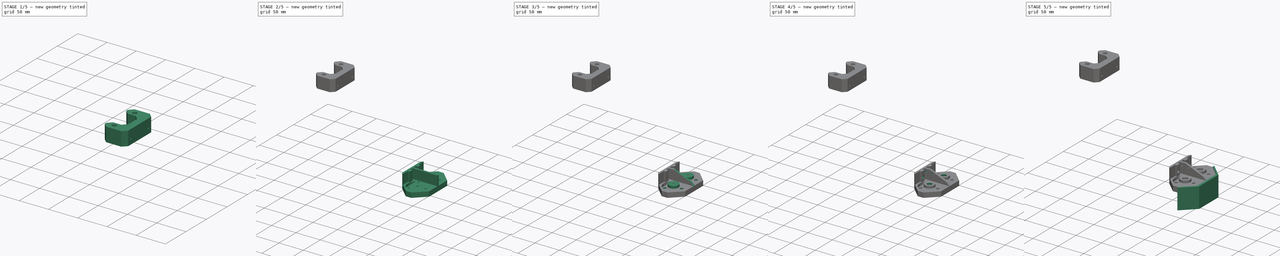
[diagram: build sequence overview — one tinted view per stage of 5, left to right]
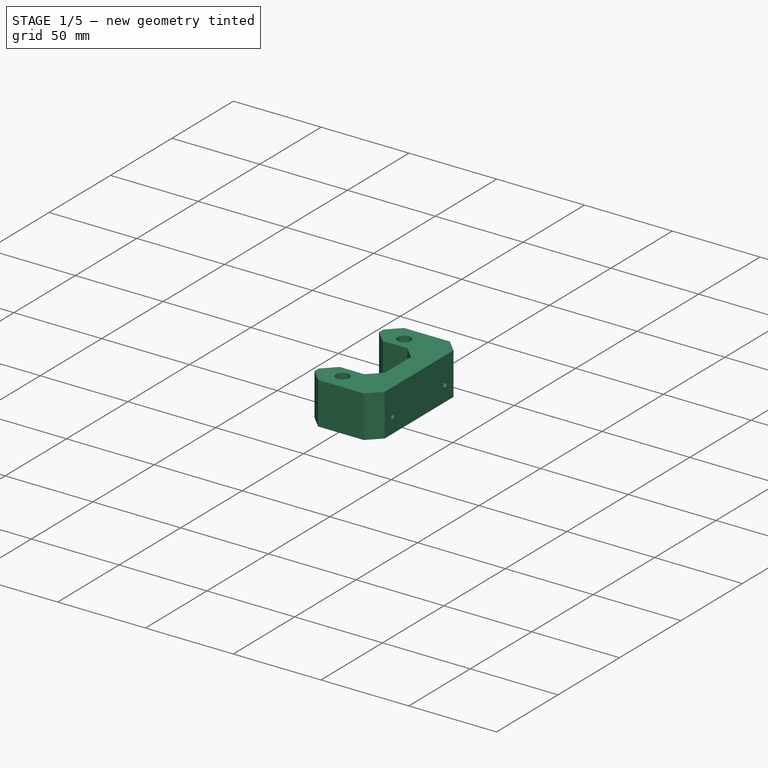
[diagram: stage 1 of 5 — iso view after this stage's code; geometry added in this stage tinted green]
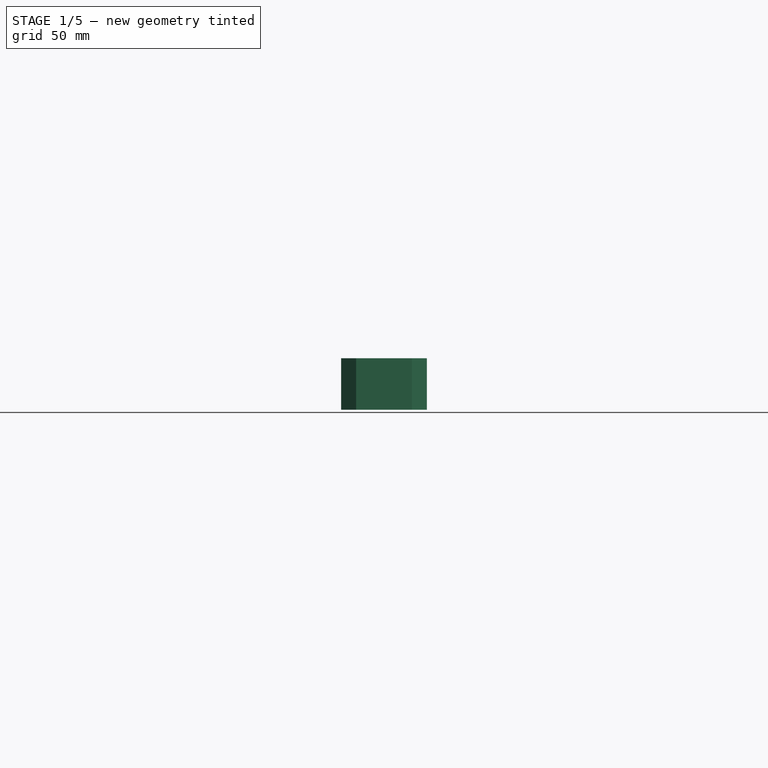
[diagram: stage 1 of 5 — front view after this stage's code; geometry added in this stage tinted green]
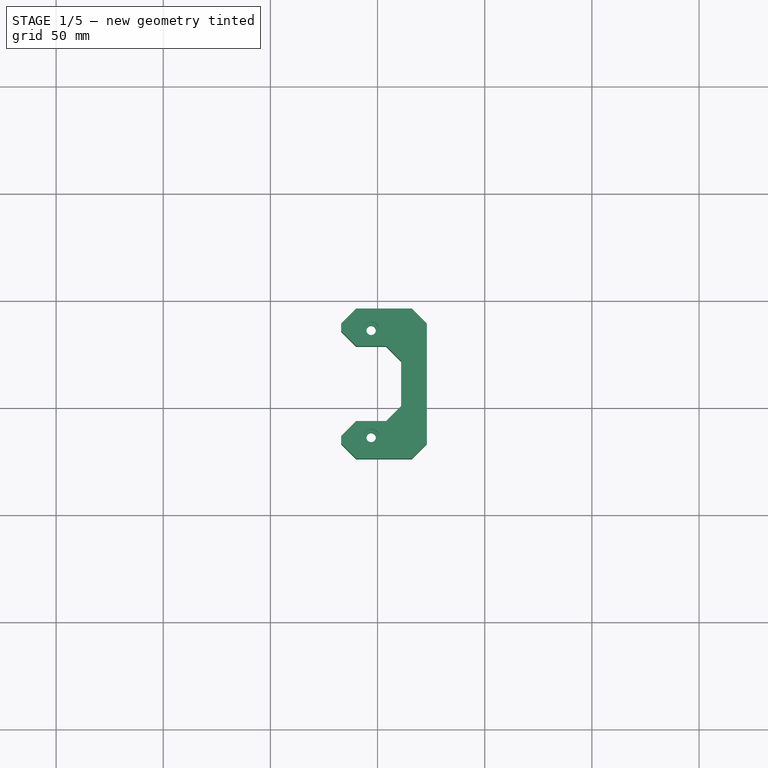
[diagram: stage 1 of 5 — top view after this stage's code; geometry added in this stage tinted green]
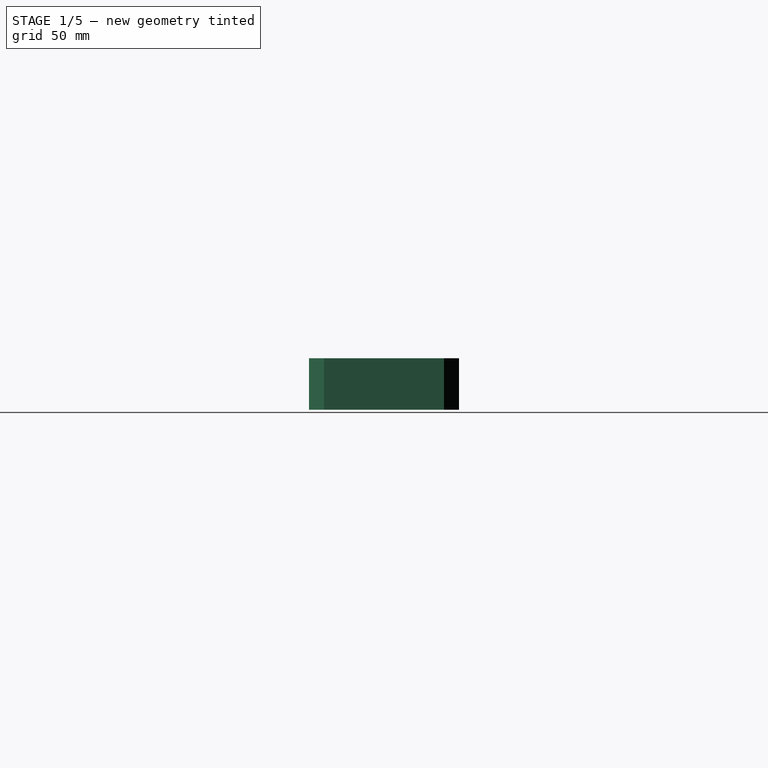
[diagram: stage 1 of 5 — right view after this stage's code; geometry added in this stage tinted green]
FCSTD DOCUMENT  (FreeCAD 0.14R2935 (Git))
Label: doble-extrusor-budas
License: CC-BY 3.0
LicenseURL: http://creativecommons.org/licenses/by/3.0/
objects: Part::Feature×26, Sketcher::SketchObject×15, PartDesign::Pocket×12, App::MeasureDistance×8, PartDesign::Chamfer×5, App::DocumentObjectGroup×4, Part::Box×3, PartDesign::Pad×3, PartDesign::Fillet×1
note: 80 computed .brp shape members not serialized (recipe doc carries the construction recipe); baked Part::Feature solids carry a one-line shape summary decoded from their .brp

FEATURE [Part::Box] Box003
  Height = 24
  Length = 40
  Placement = pos=(-267,176.2,345) rot=(0,0,1;0rad)
  Width = 70
FEATURE [Part::Feature] Compound
  Placement = pos=(-239,209.5,334) rot=(0.57735,-0.57735,-0.57735;2.0944rad)
  shape: bbox 65 x 103.4 x 73.08 mm, 1384 faces, 2 solids (baked)
FEATURE [App::MeasureDistance] Distance003  label="Distance: 65.000"
  Distance = 65
  P1 = (-267,166.57,345.079)
  P2 = (-267,231.57,345.079)
FEATURE [App::MeasureDistance] Distance004  label="Distance: 50.037"
  Distance = 50.0372
  P1 = (-255.136,174.075,338.079)
  P2 = (-255.158,224.112,338.079)
FEATURE [App::MeasureDistance] Distance005  label="Distance: 28.111"
  Distance = 28.1114
  P1 = (-267,231.57,338.079)
  P2 = (-239,234.07,338.079)
FEATURE [Sketcher::SketchObject] Sketch012
  ExternalGeometry = -> [Box003]
  Placement = pos=(-267,176.2,369) rot=(0,0,1;0rad)
  Support = -> Box003 [Face6]
  sketch-geometry (11):
    g0: LineSegment [constr] StartX=14 StartY=70 StartZ=0 EndX=14 EndY=60 EndZ=0
    g1: LineSegment [constr] StartX=14 StartY=60 StartZ=0 EndX=14 EndY=10 EndZ=0
    g2: LineSegment [constr] StartX=14 StartY=10 StartZ=0 EndX=14 EndY=0 EndZ=0
    g3: Circle CenterX=14 CenterY=60 CenterZ=0 NormalX=0 NormalY=0 NormalZ=1 Radius=2.2
    g4: Circle CenterX=14 CenterY=10 CenterZ=0 NormalX=0 NormalY=0 NormalZ=1 Radius=2.2
    g5: LineSegment StartX=0 StartY=17.5 StartZ=0 EndX=28 EndY=17.5 EndZ=0
    g6: LineSegment StartX=28 StartY=17.5 StartZ=0 EndX=28 EndY=52.5 EndZ=0
    g7: LineSegment StartX=28 StartY=52.5 StartZ=0 EndX=0 EndY=52.5 EndZ=0
    g8: LineSegment StartX=0 StartY=52.5 StartZ=0 EndX=0 EndY=17.5 EndZ=0
    g9: LineSegment [constr] StartX=0 StartY=52.5 StartZ=0 EndX=0 EndY=70 EndZ=0
    g10: LineSegment [constr] StartX=0 StartY=17.5 StartZ=0 EndX=0 EndY=0 EndZ=0
  constraints (31):
    c: PointOnObject(g0,g-3)
    c: Vertical(g0)
    c: Coincident(g0,g1)
    c: Vertical(g1)
    c: Coincident(g1,g2)
    c: Vertical(g2)
    c: Coincident(g3,g0)
    c: Coincident(g4,g1)
    c: Equal(g0,g2)
    c: Distance(g1) = 50
    c: Equal(g3,g4)
    c: Radius(g3) = 2.2
    c: Distance(g0,g-3) = 14
    c: Coincident(g5,g6)
    c: Coincident(g7,g8)
    c: Coincident(g8,g5)
    c: Horizontal(g5)
    c: Horizontal(g7)
    c: Vertical(g6)
    c: Vertical(g8)
    c: Distance(g5) = 28
    c: Coincident(g9,g7)
    c: Vertical(g9)
    c: Coincident(g10,g5)
    c: Vertical(g10)
    c: Equal(g9,g10)
    c: Coincident(g9,g-5)
    c: Coincident(g10,g-1)
    c: Distance(g6) = 35
    c: Coincident(g7,g6)
    c: PointOnObject(g2,g-4)
FEATURE [App::MeasureDistance] Distance006  label="Distance: 4.473"
  Distance = 4.47292
  P1 = (-255.079,226.986,341.579)
  P2 = (-250.921,228.636,341.579)
FEATURE [PartDesign::Pocket] Pocket012
  Length = 37
  Placement = pos=(-267,176.2,345) rot=(0,0,1;0rad)
  Sketch = -> Sketch012
  Type = 0
FEATURE [PartDesign::Chamfer] Chamfer004
  Base = -> Pocket012 [Edge24,Edge4,Edge2,Edge14,Edge25,Edge26,Edge27,Edge28]
  Placement = pos=(-267,176.2,345) rot=(0,0,1;0rad)
  Size = 7
FEATURE [Sketcher::SketchObject] Sketch013
  ExternalGeometry = -> [Chamfer004]
  Placement = pos=(-267,176.2,369) rot=(0,0,1;0rad)
  Support = -> Chamfer004 [Face2]
  sketch-geometry (2):
    g0: Circle CenterX=14 CenterY=60 CenterZ=0 NormalX=0 NormalY=0 NormalZ=1 Radius=3.75
    g1: Circle CenterX=14 CenterY=10 CenterZ=0 NormalX=0 NormalY=0 NormalZ=1 Radius=3.75
  constraints (4):
    c: Coincident(g0,g-3)
    c: Coincident(g1,g-4)
    c: Equal(g1,g0)
    c: Radius(g0) = 3.75
FEATURE [PartDesign::Pocket] Pocket013
  Length = 8
  Placement = pos=(-267,176.2,345) rot=(0,0,1;0rad)
  Sketch = -> Sketch013
  Type = 0
FEATURE [App::MeasureDistance] Distance007  label="Distance: 41.847"
  Distance = 41.8466
  P1 = (-224.653,185.828,355.656)
  P2 = (-224.653,227.668,356.396)
FEATURE [App::MeasureDistance] Distance008  label="Distance: 15.674"
  Distance = 15.674
  P1 = (-224.653,228.345,354.344)
  P2 = (-224.653,227.585,370)
FEATURE [Sketcher::SketchObject] Sketch014
  ExternalGeometry = -> [Pocket013]
  Placement = pos=(-227,176.2,345) rot=(0.57735,0.57735,0.57735;2.0944rad)
  Support = -> Pocket013 [Face10]
  sketch-geometry (5):
    g0: LineSegment [constr] StartX=7 StartY=9 StartZ=0 EndX=13.75 EndY=9 EndZ=0
    g1: LineSegment [constr] StartX=13.75 StartY=9 StartZ=0 EndX=56.25 EndY=9 EndZ=0
    g2: LineSegment [constr] StartX=56.25 StartY=9 StartZ=0 EndX=63 EndY=9 EndZ=0
    g3: Circle CenterX=13.75 CenterY=9 CenterZ=0 NormalX=0 NormalY=0 NormalZ=1 Radius=1.45
    g4: Circle CenterX=56.25 CenterY=9 CenterZ=0 NormalX=0 NormalY=0 NormalZ=1 Radius=1.45
  constraints (14):
    c: PointOnObject(g0,g-3)
    c: Horizontal(g0)
    c: Coincident(g0,g1)
    c: Horizontal(g1)
    c: Coincident(g1,g2)
    c: PointOnObject(g2,g-4)
    c: Horizontal(g2)
    c: Equal(g2,g0)
    c: Distance(g1) = 42.5
    c: Distance(g2,g-4) = 15
    c: Coincident(g3,g0)
    c: Coincident(g4,g1)
    c: Equal(g3,g4)
    c: Radius(g3) = 1.45
FEATURE [PartDesign::Pocket] Pocket014
  Length = 25
  Placement = pos=(-267,176.2,345) rot=(0,0,1;0rad)
  Sketch = -> Sketch014
  Type = 0
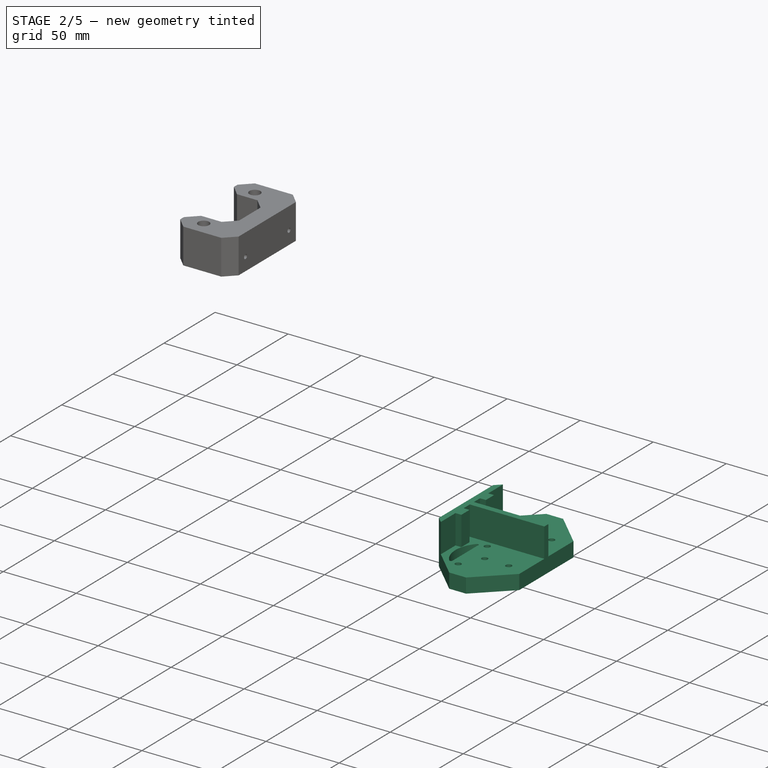
[diagram: stage 2 of 5 — iso view after this stage's code; geometry added in this stage tinted green]
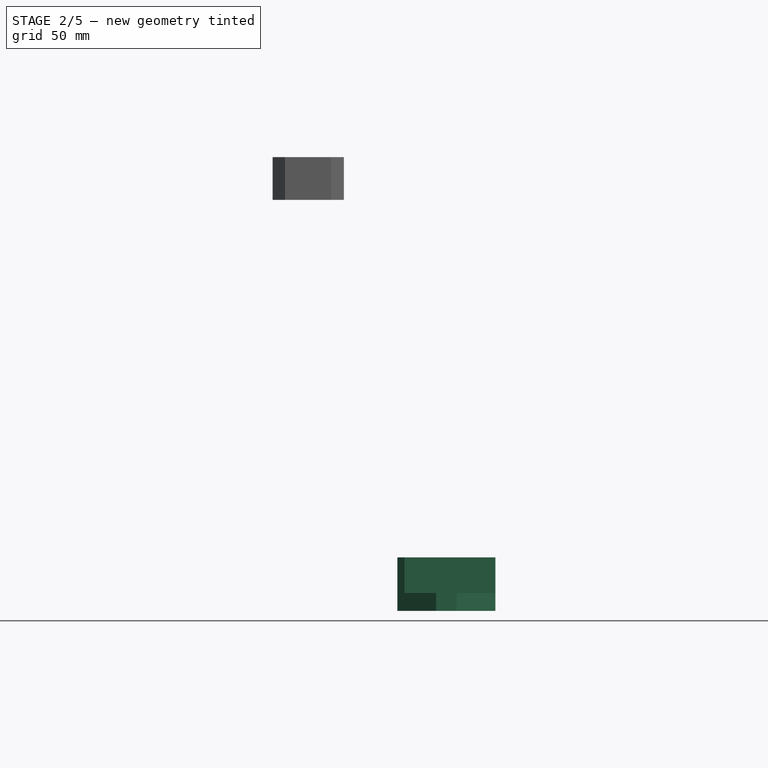
[diagram: stage 2 of 5 — front view after this stage's code; geometry added in this stage tinted green]
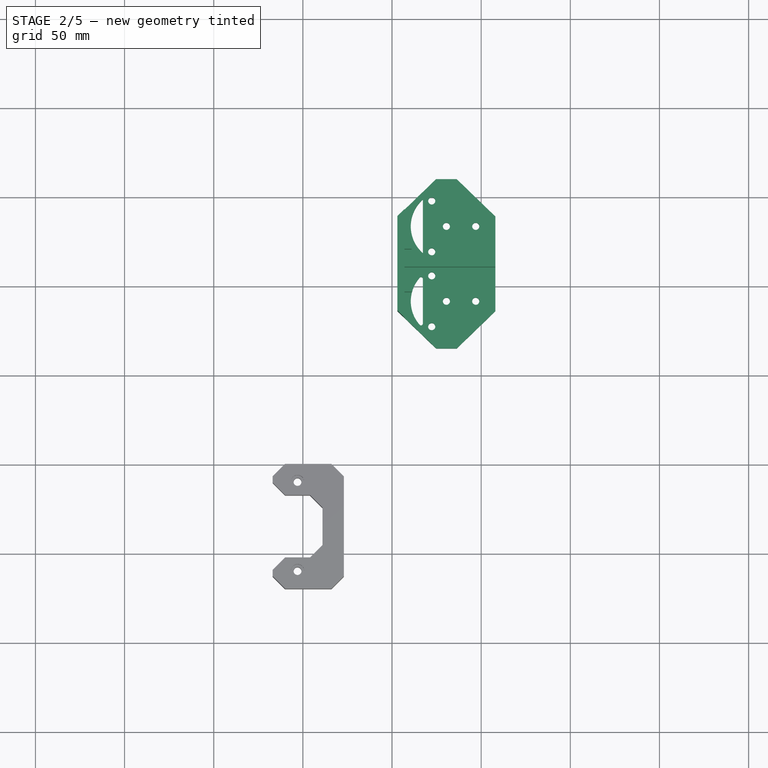
[diagram: stage 2 of 5 — top view after this stage's code; geometry added in this stage tinted green]
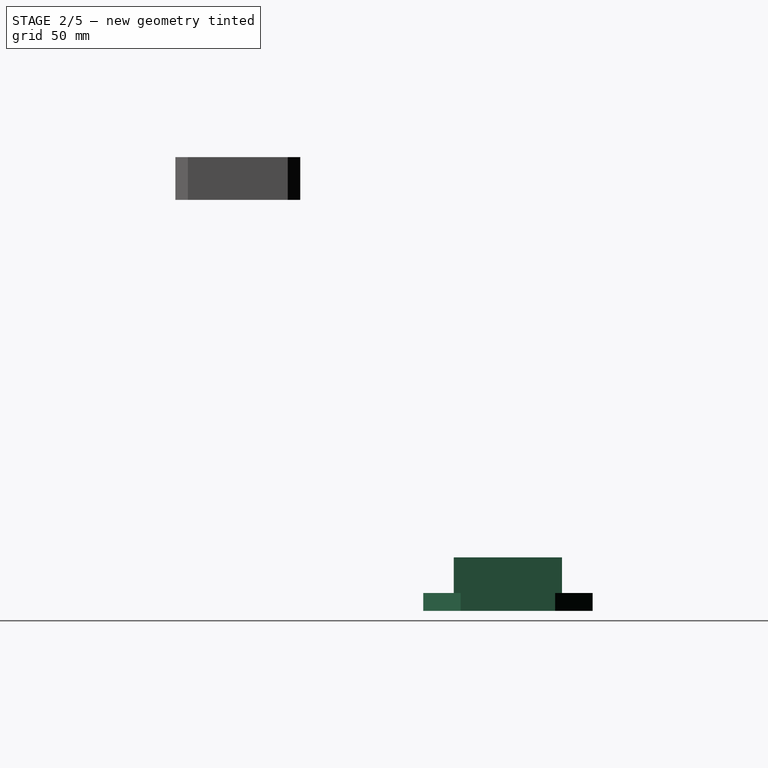
[diagram: stage 2 of 5 — right view after this stage's code; geometry added in this stage tinted green]
FEATURE [Part::Feature] Part__Feature  label="correaX"
  Placement = pos=(-3097.55,3700.46,-130) rot=(0,0,1;0rad)
  shape: bbox 5.8 x 387.9 x 22.53 mm, 52 faces, 0 solids (baked)
FEATURE [Part::Feature] Part__Feature001  label="varilla003"
  Placement = pos=(-3097.55,3700.46,-130) rot=(0,0,1;0rad)
  shape: bbox 8 x 360.1 x 8 mm, 8 faces (baked)
FEATURE [Part::Feature] Part__Feature002  label="varilla002"
  Placement = pos=(-3097.55,3700.46,-130) rot=(0,0,1;0rad)
  shape: bbox 8 x 360.1 x 8 mm, 8 faces (baked)
FEATURE [Part::Feature] Part__Feature003  label="Document252"
  Placement = pos=(-3097.55,3700.46,-130) rot=(0,0,1;0rad)
  shape: bbox 32 x 39.5 x 60 mm, 60 faces (baked)
FEATURE [Part::Feature] Part__Feature004  label="x_motor"
  Placement = pos=(-3097.55,3700.46,-130) rot=(0,0,1;0rad)
  shape: bbox 32 x 82.5 x 60 mm, 96 faces, 0 solids (baked)
FEATURE [Part::Feature] Part__Feature006  label="Document215"
  Placement = pos=(-3097.55,3700.46,0) rot=(0,0,1;0rad)
  shape: bbox 3 x 390 x 370 mm, 688 faces (baked)
FEATURE [Part::Feature] Part__Feature007  label="camaCaliente"
  Placement = pos=(-3097.55,3700.46,0) rot=(0,0,1;0rad)
  shape: bbox 214 x 214 x 3 mm, 14 faces (baked)
FEATURE [Part::Feature] Part__Feature008  label="Document180"
  Placement = pos=(-3097.55,3700.46,0) rot=(0,0,1;0rad)
  shape: bbox 230.9 x 223 x 3 mm, 242 faces (baked)
FEATURE [Part::Feature] Part__Feature009  label="Endstop"
  Placement = pos=(-3097.55,3700.46,-130) rot=(0,0,1;0rad)
  shape: bbox 6 x 19.83 x 19.7 mm, 47 faces (baked)
FEATURE [Part::Feature] Part__Feature010  label="Nema001"
  Placement = pos=(-3097.55,3700.46,0) rot=(0,0,1;0rad)
  shape: bbox 71.05 x 42 x 42 mm, 43 faces (baked)
FEATURE [Part::Feature] Part__Feature011  label="JheadMK5"
  Placement = pos=(-3097.55,3611.46,-138) rot=(0,0,1;0rad)
  shape: bbox 24.81 x 19.62 x 55.95 mm, 36 faces (baked)
FEATURE [Part::Feature] Part__Feature012  label="xcarriage"
  Placement = pos=(-3097.55,3840.46,-130) rot=(0,0,1;0rad)
  shape: bbox 23 x 60 x 71 mm, 162 faces (baked)
FEATURE [Part::Feature] Part__Feature014  label="Document171"
  Placement = pos=(-3097.55,3840.46,-130) rot=(0,0,1;0rad)
  shape: bbox 15 x 45 x 15 mm, 18 faces (baked)
FEATURE [Part::Feature] Part__Feature015  label="LM8UUL"
  Placement = pos=(-3097.55,3700.46,0) rot=(0,0,1;0rad)
  shape: bbox 15 x 45 x 15 mm, 18 faces (baked)
FEATURE [Part::Feature] Part__Feature016  label="acoplador001"
  Placement = pos=(-3097.55,3700.46,0) rot=(0,0,1;0rad)
  shape: bbox 19.06 x 19.08 x 25 mm, 33 faces (baked)
FEATURE [Part::Feature] Part__Feature017  label="acoplador"
  Placement = pos=(-3097.55,3700.46,0) rot=(0,0,1;0rad)
  shape: bbox 19.06 x 19.08 x 25 mm, 33 faces (baked)
FEATURE [Part::Feature] Part__Feature026  label="Nema002"
  Placement = pos=(-3097.55,3700.46,0) rot=(0,0,1;0rad)
  shape: bbox 71.05 x 42 x 42 mm, 43 faces (baked)
FEATURE [Part::Feature] Part__Feature027  label="Document254"
  Placement = pos=(-3097.55,3620.46,-130) rot=(0,0,1;0rad)
  shape: bbox 15 x 45 x 15 mm, 18 faces (baked)
FEATURE [Part::Feature] Part__Feature028  label="LM8UUL001"
  Placement = pos=(-3097.55,3840.46,-130) rot=(0,0,1;0rad)
  shape: bbox 15 x 45 x 15 mm, 18 faces (baked)
FEATURE [Part::Feature] Part__Feature029  label="Espejo"
  Placement = pos=(-3097.55,3700.46,-9) rot=(0,0,1;0rad)
  shape: bbox 214 x 214 x 3 mm, 14 faces (baked)
FEATURE [App::DocumentObjectGroup] Group  label="Cosmetico"
  Group = -> [Part__Feature006,Part__Feature007,Part__Feature008,Part__Feature009,Part__Feature010,Part__Feature015,Part__Feature016,Part__Feature017,Part__Feature026,Part__Feature029]
FEATURE [App::DocumentObjectGroup] Group001  label="Ejex"
  Group = -> [Part__Feature004,Part__Feature012,Part__Feature,Part__Feature001,Part__Feature002,Part__Feature003,Part__Feature011,Part__Feature027,Part__Feature014,Part__Feature028]
FEATURE [Part::Box] Box  label="Cube"
  Height = 10
  Length = 55
  Placement = pos=(-197,315.2,114.5) rot=(0,0,1;0rad)
  Width = 95
FEATURE [Part::Feature] Fusion  label="buda2"
  Placement = pos=(-169.5,341.5,118) rot=(1,0,0;3.14159rad)
  shape: bbox 39.5 x 39.5 x 60 mm, 76 faces (baked)
FEATURE [Part::Feature] Fusion001  label="buda003"
  Placement = pos=(-169.5,383.5,118) rot=(1,0,0;3.14159rad)
  shape: bbox 39.5 x 39.5 x 60 mm, 76 faces (baked)
FEATURE [Sketcher::SketchObject] Sketch
  ExternalGeometry = -> [Box]
  Placement = pos=(-197,315.2,124.5) rot=(0,0,1;0rad)
  Support = -> Box [Face6]
  sketch-geometry (24):
    g0: Circle [constr] CenterX=27.5 CenterY=68.5 CenterZ=0 NormalX=0 NormalY=0 NormalZ=1 Radius=20
    g1: Circle [constr] CenterX=27.5 CenterY=26.5 CenterZ=0 NormalX=0 NormalY=0 NormalZ=1 Radius=20
    g2: LineSegment [constr] StartX=27.5 StartY=95 StartZ=0 EndX=27.5 EndY=68.5 EndZ=0
    g3: LineSegment [constr] StartX=27.5 StartY=68.5 StartZ=0 EndX=27.5 EndY=26.5 EndZ=0
    g4: LineSegment [constr] StartX=27.5 StartY=26.5 StartZ=0 EndX=27.5 EndY=0 EndZ=0
    g5: GeomPoint [constr] X=27.5 Y=46.5 Z=0
    g6: GeomPoint [constr] X=27.5 Y=48.5 Z=0
    g7: LineSegment [constr] StartX=0 StartY=0 StartZ=0 EndX=0 EndY=21 EndZ=0
    g8: LineSegment [constr] StartX=0 StartY=21 StartZ=0 EndX=0 EndY=74 EndZ=0
    g9: LineSegment [constr] StartX=0 StartY=74 StartZ=0 EndX=0 EndY=95 EndZ=0
    g10: Circle CenterX=27.5 CenterY=26.5 CenterZ=0 NormalX=0 NormalY=0 NormalZ=1 Radius=2
    g11: Circle CenterX=27.5 CenterY=68.5 CenterZ=0 NormalX=0 NormalY=0 NormalZ=1 Radius=2
    g12: LineSegment StartX=0 StartY=74 StartZ=0 EndX=21.7461 EndY=95 EndZ=0
    g13: LineSegment StartX=21.7461 StartY=95 StartZ=0 EndX=0 EndY=95 EndZ=0
    g14: LineSegment StartX=0 StartY=95 StartZ=0 EndX=0 EndY=74 EndZ=0
    g15: LineSegment StartX=33.2539 StartY=95 StartZ=0 EndX=55 EndY=95 EndZ=0
    g16: LineSegment StartX=55 StartY=95 StartZ=0 EndX=55 EndY=74 EndZ=0
    g17: LineSegment StartX=55 StartY=74 StartZ=0 EndX=33.2539 EndY=95 EndZ=0
    g18: LineSegment StartX=55 StartY=21 StartZ=0 EndX=33.2539 EndY=0 EndZ=0
    g19: LineSegment StartX=33.2539 StartY=0 StartZ=0 EndX=55 EndY=0 EndZ=0
    g20: LineSegment StartX=55 StartY=0 StartZ=0 EndX=55 EndY=21 EndZ=0
    g21: LineSegment StartX=0 StartY=21 StartZ=0 EndX=0 EndY=0 EndZ=0
    g22: LineSegment StartX=0 StartY=0 StartZ=0 EndX=21.7461 EndY=0 EndZ=0
    g23: LineSegment StartX=21.7461 StartY=0 StartZ=0 EndX=0 EndY=21 EndZ=0
  constraints (64):
    c: Radius(g1) = 20
    c: Equal(g1,g0)
    c: Coincident(g2,g0)
    c: Coincident(g2,g3)
    c: Coincident(g3,g1)
    c: Coincident(g3,g4)
    c: Equal(g4,g2)
    c: Vertical(g2)
    c: Vertical(g4)
    c: Vertical(g3)
    c: PointOnObject(g6,g0)
    c: PointOnObject(g6,g3)
    c: PointOnObject(g5,g3)
    c: PointOnObject(g5,g1)
    c: Distance(g6,g5) = 2
    c: Coincident(g7,g8)
    c: Vertical(g8)
    c: Coincident(g8,g9)
    c: Vertical(g9)
    c: Vertical(g7)
    c: Equal(g9,g7)
    c: Distance(g8) = 53
    c: Coincident(g7,g-1)
    c: Coincident(g9,g-5)
    c: Coincident(g9,g-3)
    c: Coincident(g10,g1)
    c: Coincident(g11,g0)
    c: Radius(g11) = 2
    c: Equal(g11,g10)
    c: PointOnObject(g7,g-3)
    c: PointOnObject(g2,g-5)
    c: PointOnObject(g4,g-1)
    c: Distance(g4,g-4) = 27.5
    c: Coincident(g8,g12)
    c: PointOnObject(g12,g-5)
    c: Coincident(g12,g13)
    c: Coincident(g13,g9)
    c: Coincident(g13,g14)
    c: Coincident(g14,g12)
    c: PointOnObject(g15,g-5)
    c: Coincident(g15,g16)
    c: PointOnObject(g16,g-4)
    c: Coincident(g16,g17)
    c: Coincident(g17,g15)
    c: Coincident(g15,g-5)
    c: Equal(g13,g15)
    c: Equal(g14,g16)
    c: PointOnObject(g18,g-4)
    c: PointOnObject(g18,g-1)
    c: Coincident(g18,g19)
    c: Coincident(g19,g20)
    c: Coincident(g20,g18)
    c: Coincident(g7,g21)
    c: Coincident(g21,g22)
    c: PointOnObject(g22,g-1)
    c: Coincident(g22,g23)
    c: Coincident(g23,g21)
    c: Equal(g21,g20)
    c: Equal(g22,g19)
    c: Equal(g15,g22)
    c: Equal(g22,g19)
    c: Coincident(g19,g-4)
    c: Coincident(g21,g-1)
    c: Angle(g17,g-4) = 2.33874
FEATURE [App::MeasureDistance] Distance  label="Distance: 53.000"
  Distance = 53
  P1 = (-197.352,389.155,151.44)
  P2 = (-197.352,336.155,151.44)
FEATURE [PartDesign::Pocket] Pocket
  Length = 10
  Placement = pos=(-197,315.2,114.5) rot=(0,0,1;0rad)
  Sketch = -> Sketch
  Type = 0
FEATURE [Sketcher::SketchObject] Sketch001
  Placement = pos=(-197,315.2,124.5) rot=(0,0,1;0rad)
  Support = -> Pocket [Face2]
  sketch-geometry (23):
    g0: Circle [constr] CenterX=27.5 CenterY=26.5 CenterZ=0 NormalX=0 NormalY=0 NormalZ=1 Radius=16.4545
    g1: Circle [constr] CenterX=27.5 CenterY=68.5 CenterZ=0 NormalX=0 NormalY=0 NormalZ=1 Radius=16.4545
    g2: LineSegment [constr] StartX=19.2728 StartY=40.75 StartZ=0 EndX=43.9545 EndY=26.5 EndZ=0
    g3: LineSegment [constr] StartX=43.9545 StartY=26.5 StartZ=0 EndX=19.2728 EndY=12.25 EndZ=0
    g4: LineSegment [constr] StartX=19.2728 StartY=12.25 StartZ=0 EndX=19.2728 EndY=40.75 EndZ=0
    g5: LineSegment [constr] StartX=19.2728 StartY=82.75 StartZ=0 EndX=43.9545 EndY=68.5 EndZ=0
    g6: LineSegment [constr] StartX=43.9545 StartY=68.5 StartZ=0 EndX=19.2728 EndY=54.25 EndZ=0
    g7: LineSegment [constr] StartX=19.2728 StartY=54.25 StartZ=0 EndX=19.2728 EndY=82.75 EndZ=0
    g8: LineSegment [constr] StartX=19.2728 StartY=54.25 StartZ=0 EndX=19.2728 EndY=40.75 EndZ=0
    g9: Circle CenterX=19.2728 CenterY=12.25 CenterZ=0 NormalX=0 NormalY=0 NormalZ=1 Radius=2
    g10: Circle CenterX=19.2728 CenterY=40.75 CenterZ=0 NormalX=0 NormalY=0 NormalZ=1 Radius=2
    g11: Circle CenterX=43.9545 CenterY=26.5 CenterZ=0 NormalX=0 NormalY=0 NormalZ=1 Radius=2
    g12: Circle CenterX=19.2728 CenterY=54.25 CenterZ=0 NormalX=0 NormalY=0 NormalZ=1 Radius=2
    g13: Circle CenterX=19.2728 CenterY=82.75 CenterZ=0 NormalX=0 NormalY=0 NormalZ=1 Radius=2
    g14: Circle CenterX=43.9545 CenterY=68.5 CenterZ=0 NormalX=0 NormalY=0 NormalZ=1 Radius=2
    g15: Circle [constr] CenterX=27.5 CenterY=26.5 CenterZ=0 NormalX=0 NormalY=0 NormalZ=1 Radius=20
    g16: Circle [constr] CenterX=27.5 CenterY=68.5 CenterZ=0 NormalX=0 NormalY=0 NormalZ=1 Radius=20
    g17: LineSegment [constr] StartX=17.2728 StartY=9.31269 StartZ=0 EndX=17.2728 EndY=85.6873 EndZ=0
    g18: LineSegment [constr] StartX=14.2728 StartY=11.4987 StartZ=0 EndX=14.2728 EndY=83.5013 EndZ=0
    g19: ArcOfCircle CenterX=27.5 CenterY=26.5 CenterZ=0 NormalX=0 NormalY=0 NormalZ=1 Radius=20 StartAngle=2.29343 EndAngle=3.98976
    g20: ArcOfCircle CenterX=27.5 CenterY=68.5 CenterZ=0 NormalX=0 NormalY=0 NormalZ=1 Radius=20 StartAngle=2.29343 EndAngle=3.98976
    g21: LineSegment StartX=14.2728 StartY=11.4987 StartZ=0 EndX=14.2728 EndY=41.5013 EndZ=0
    g22: LineSegment StartX=14.2728 StartY=53.4987 StartZ=0 EndX=14.2728 EndY=83.5013 EndZ=0
  constraints (58):
    c: PointOnObject(g2,g0)
    c: PointOnObject(g2,g0)
    c: Coincident(g2,g3)
    c: PointOnObject(g3,g0)
    c: Coincident(g3,g4)
    c: Coincident(g4,g2)
    c: PointOnObject(g5,g1)
    c: Coincident(g5,g6)
    c: PointOnObject(g6,g1)
    c: Coincident(g6,g7)
    c: Coincident(g5,g7)
    c: PointOnObject(g5,g1)
    c: Equal(g2,g3)
    c: Equal(g3,g4)
    c: Equal(g4,g7)
    c: Equal(g7,g5)
    c: Equal(g5,g6)
    c: Distance(g5) = 28.5
    c: Coincident(g8,g6)
    c: Coincident(g8,g2)
    c: Vertical(g7)
    c: Vertical(g4)
    c: Coincident(g9,g3)
    c: Coincident(g10,g2)
    c: Coincident(g11,g2)
    c: Coincident(g12,g6)
    c: Coincident(g13,g5)
    c: Coincident(g14,g5)
    c: Radius(g14) = 2
    c: Equal(g14,g13)
    c: Equal(g14,g12)
    c: Equal(g14,g10)
    c: Equal(g14,g9)
    c: Equal(g14,g11)
    c: Coincident(g16,g1)
    c: Radius(g15) = 20
    c: Equal(g15,g16)
    c: PointOnObject(g17,g15)
    c: PointOnObject(g17,g16)
    c: Vertical(g17)
    c: Coincident(g0,g15)
    c: Tangent(g13,g17)
    c: PointOnObject(g18,g15)
    c: PointOnObject(g18,g16)
    c: Coincident(g19,g0)
    c: PointOnObject(g19,g15)
    c: Coincident(g20,g1)
    c: PointOnObject(g20,g16)
    c: Coincident(g21,g19)
    c: Coincident(g21,g19)
    c: Vertical(g21)
    c: Coincident(g22,g20)
    c: Coincident(g22,g20)
    c: Vertical(g22)
    c: PointOnObject(g20,g18)
    c: PointOnObject(g19,g18)
    c: Vertical(g18)
    c: Distance(g19,g17) = 3
FEATURE [PartDesign::Pocket] Pocket001
  Length = 10
  Placement = pos=(-197,315.2,114.5) rot=(0,0,1;0rad)
  Sketch = -> Sketch001
  Type = 0
FEATURE [Part::Feature] Pocket003  label="Ventilador30mm001"
  Placement = pos=(-142,326,89) rot=(0,0,1;3.49066rad)
  shape: bbox 31.61 x 19.66 x 30 mm, 15 faces (baked)
FEATURE [Part::Feature] Pocket004  label="Ventilador30mm002"
  Placement = pos=(-132,322,66) rot=(-0.108666,0.29064,0.950642;3.8246rad)
  shape: bbox 37.39 x 36.81 x 30.46 mm, 15 faces (baked)
FEATURE [PartDesign::Fillet] Fillet
  Base = -> Pocket001 [Edge52,Edge54,Edge53,Edge51]
  Placement = pos=(-197,315.2,114.5) rot=(0,0,1;0rad)
  Radius = 1
FEATURE [Sketcher::SketchObject] Sketch002
  ExternalGeometry = -> [Fillet]
  Placement = pos=(-197,315.2,124.5) rot=(0,0,1;0rad)
  Support = -> Fillet [Face1]
  sketch-geometry (20):
    g0: LineSegment StartX=4 StartY=17.1372 StartZ=0 EndX=4 EndY=31.5 EndZ=0
    g1: LineSegment StartX=4 StartY=31.5 StartZ=0 EndX=8 EndY=31.5 EndZ=0
    g2: LineSegment StartX=8 StartY=31.5 StartZ=0 EndX=8 EndY=39.5 EndZ=0
    g3: LineSegment StartX=8 StartY=39.5 StartZ=0 EndX=4 EndY=39.5 EndZ=0
    g4: LineSegment StartX=4 StartY=49.5 StartZ=0 EndX=55 EndY=49.5 EndZ=0
    g5: LineSegment StartX=55 StartY=49.5 StartZ=0 EndX=55 EndY=45.5 EndZ=0
    g6: LineSegment StartX=55 StartY=45.5 StartZ=0 EndX=4 EndY=45.5 EndZ=0
    g7: LineSegment StartX=4 StartY=55.5 StartZ=0 EndX=8 EndY=55.5 EndZ=0
    g8: LineSegment StartX=8 StartY=55.5 StartZ=0 EndX=8 EndY=63.5 EndZ=0
    g9: LineSegment StartX=8 StartY=63.5 StartZ=0 EndX=4 EndY=63.5 EndZ=0
    g10: LineSegment StartX=4 StartY=63.5 StartZ=0 EndX=4 EndY=77.8628 EndZ=0
    g11: LineSegment StartX=4 StartY=77.8628 StartZ=0 EndX=0 EndY=74 EndZ=0
    g12: LineSegment StartX=0 StartY=74 StartZ=0 EndX=0 EndY=21 EndZ=0
    g13: LineSegment StartX=0 StartY=21 StartZ=0 EndX=4 EndY=17.1372 EndZ=0
    g14: LineSegment [constr] StartX=4 StartY=31.5 StartZ=0 EndX=4 EndY=39.5 EndZ=0
    g15: LineSegment [constr] StartX=4 StartY=49.5 StartZ=0 EndX=4 EndY=45.5 EndZ=0
    g16: LineSegment [constr] StartX=4 StartY=63.5 StartZ=0 EndX=4 EndY=55.5 EndZ=0
    g17: LineSegment [constr] StartX=8 StartY=39.5 StartZ=0 EndX=8 EndY=55.5 EndZ=0
    g18: LineSegment StartX=4 StartY=39.5 StartZ=0 EndX=4 EndY=45.5 EndZ=0
    g19: LineSegment StartX=4 StartY=49.5 StartZ=0 EndX=4 EndY=55.5 EndZ=0
  constraints (54):
    c: PointOnObject(g0,g-3)
    c: Vertical(g0)
    c: Coincident(g0,g1)
    c: Horizontal(g1)
    c: Coincident(g1,g2)
    c: Vertical(g2)
    c: Coincident(g2,g3)
    c: Horizontal(g3)
    c: Horizontal(g4)
    c: Coincident(g4,g5)
    c: Vertical(g5)
    c: Coincident(g5,g6)
    c: Horizontal(g6)
    c: Horizontal(g7)
    c: Coincident(g7,g8)
    c: Vertical(g8)
    c: Coincident(g8,g9)
    c: Coincident(g9,g10)
    c: PointOnObject(g10,g-4)
    c: Vertical(g10)
    c: Coincident(g10,g11)
    c: Coincident(g11,g-4)
    c: Coincident(g11,g12)
    c: Coincident(g12,g-3)
    c: Coincident(g12,g13)
    c: Coincident(g13,g0)
    c: Coincident(g14,g0)
    c: Coincident(g14,g3)
    c: Coincident(g15,g6)
    c: Vertical(g15)
    c: Coincident(g16,g9)
    c: Coincident(g17,g2)
    c: Coincident(g17,g7)
    c: Horizontal(g9)
    c: Vertical(g16)
    c: Vertical(g14)
    c: Equal(g14,g16)
    c: Equal(g9,g3)
    c: Equal(g10,g0)
    c: Distance(g2) = 8
    c: Distance(g17) = 16
    c: Distance(g5) = 4
    c: Coincident(g18,g3)
    c: Coincident(g18,g6)
    c: Vertical(g18)
    c: Coincident(g19,g15)
    c: Coincident(g19,g7)
    c: Vertical(g19)
    c: Equal(g19,g18)
    c: Coincident(g16,g7)
    c: Coincident(g4,g15)
    c: Distance(g11,g10) = 4
    c: Distance(g9) = 4
    c: PointOnObject(g4,g-5)
FEATURE [PartDesign::Pad] Pad
  Length = 20
  Length2 = 10
  Placement = pos=(-197,315.2,114.5) rot=(0,0,1;0rad)
  Sketch = -> Sketch002
  Type = 0
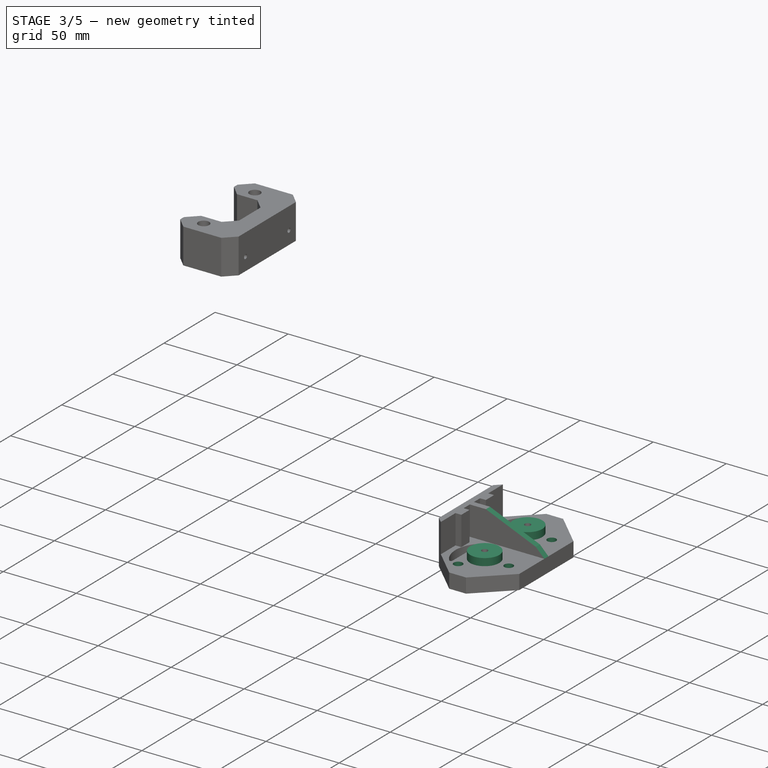
[diagram: stage 3 of 5 — iso view after this stage's code; geometry added in this stage tinted green]
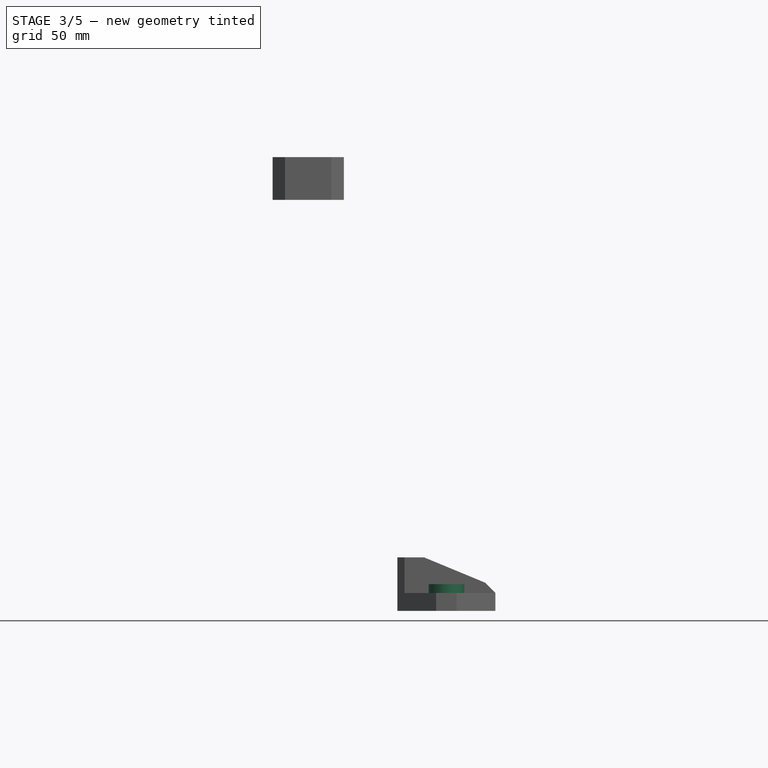
[diagram: stage 3 of 5 — front view after this stage's code; geometry added in this stage tinted green]
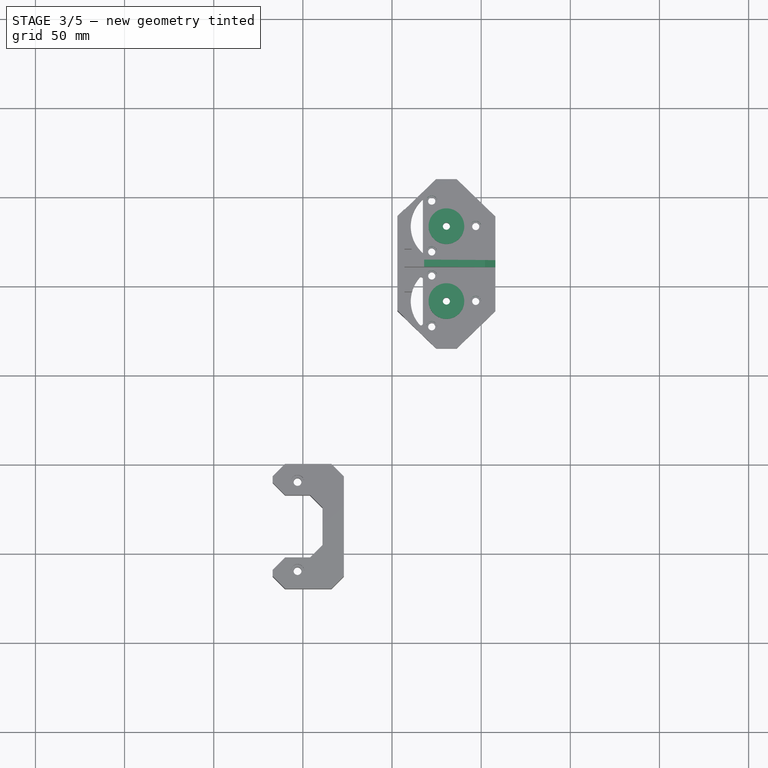
[diagram: stage 3 of 5 — top view after this stage's code; geometry added in this stage tinted green]
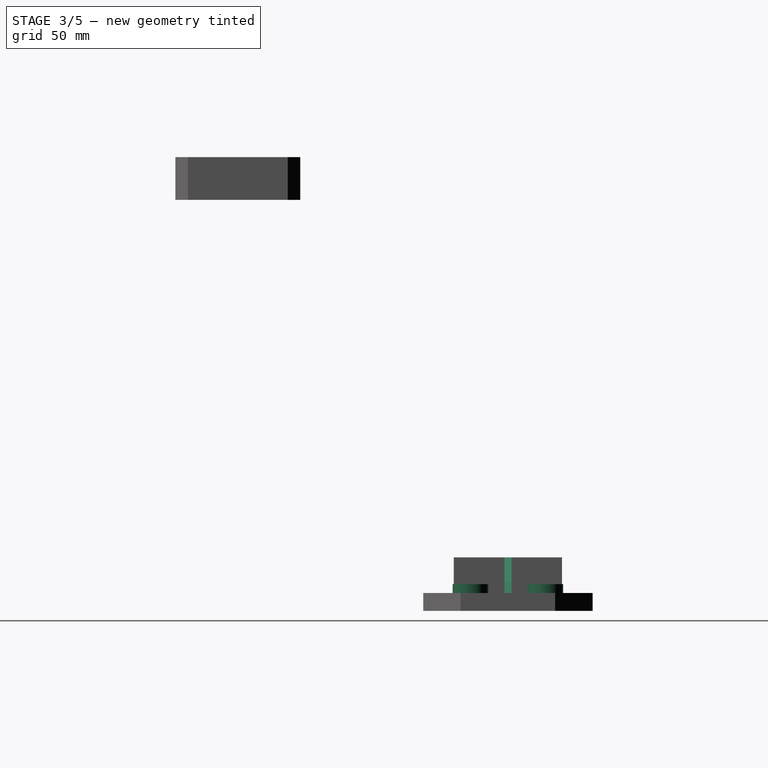
[diagram: stage 3 of 5 — right view after this stage's code; geometry added in this stage tinted green]
FEATURE [PartDesign::Chamfer] Chamfer
  Base = -> Pad [Edge15]
  Placement = pos=(-197,315.2,114.5) rot=(0,0,1;0rad)
  Size = 20
FEATURE [PartDesign::Chamfer] Chamfer001
  Base = -> Chamfer [Edge2]
  Placement = pos=(-197,315.2,114.5) rot=(0,0,1;0rad)
  Size = 20
FEATURE [Sketcher::SketchObject] Sketch003
  ExternalGeometry = -> [Chamfer001]
  Placement = pos=(-197,315.2,124.5) rot=(0,0,1;0rad)
  Support = -> Chamfer001 [Face20]
  sketch-geometry (6):
    g0: Circle CenterX=19.2728 CenterY=40.75 CenterZ=0 NormalX=0 NormalY=0 NormalZ=1 Radius=3
    g1: Circle CenterX=19.2728 CenterY=12.25 CenterZ=0 NormalX=0 NormalY=0 NormalZ=1 Radius=3
    g2: Circle CenterX=43.9545 CenterY=26.5 CenterZ=0 NormalX=0 NormalY=0 NormalZ=1 Radius=3
    g3: Circle CenterX=19.2728 CenterY=54.25 CenterZ=0 NormalX=0 NormalY=0 NormalZ=1 Radius=3
    g4: Circle CenterX=19.2728 CenterY=82.75 CenterZ=0 NormalX=0 NormalY=0 NormalZ=1 Radius=3
    g5: Circle CenterX=43.9545 CenterY=68.5 CenterZ=0 NormalX=0 NormalY=0 NormalZ=1 Radius=3
  constraints (12):
    c: Coincident(g1,g-3)
    c: Coincident(g4,g-13)
    c: Coincident(g3,g-12)
    c: Coincident(g5,g-10)
    c: Coincident(g0,g-5)
    c: Coincident(g2,g-8)
    c: Radius(g0) = 3
    c: Equal(g0,g1)
    c: Equal(g0,g2)
    c: Equal(g0,g5)
    c: Equal(g0,g4)
    c: Equal(g0,g3)
FEATURE [PartDesign::Pocket] Pocket005
  Length = 6
  Placement = pos=(-197,315.2,114.5) rot=(0,0,1;0rad)
  Sketch = -> Sketch003
  Type = 0
FEATURE [Sketcher::SketchObject] Sketch004
  Placement = pos=(-197,315.2,124.5) rot=(0,0,1;0rad)
  Support = -> Pocket005 [Face20]
  sketch-geometry (4):
    g0: Circle CenterX=27.5 CenterY=68.5 CenterZ=0 NormalX=0 NormalY=0 NormalZ=1 Radius=10
    g1: Circle CenterX=27.5 CenterY=26.5 CenterZ=0 NormalX=0 NormalY=0 NormalZ=1 Radius=10
    g2: Circle CenterX=27.5 CenterY=68.5 CenterZ=0 NormalX=0 NormalY=0 NormalZ=1 Radius=2
    g3: Circle CenterX=27.5 CenterY=26.5 CenterZ=0 NormalX=0 NormalY=0 NormalZ=1 Radius=2
  constraints (5):
    c: Coincident(g2,g0)
    c: Coincident(g3,g1)
    c: Equal(g3,g2)
    c: Radius(g0) = 10
    c: Equal(g0,g1)
FEATURE [PartDesign::Pad] Pad001
  Length = 5
  Length2 = 10
  Placement = pos=(-197,315.2,114.5) rot=(0,0,1;0rad)
  Sketch = -> Sketch004
  Type = 0
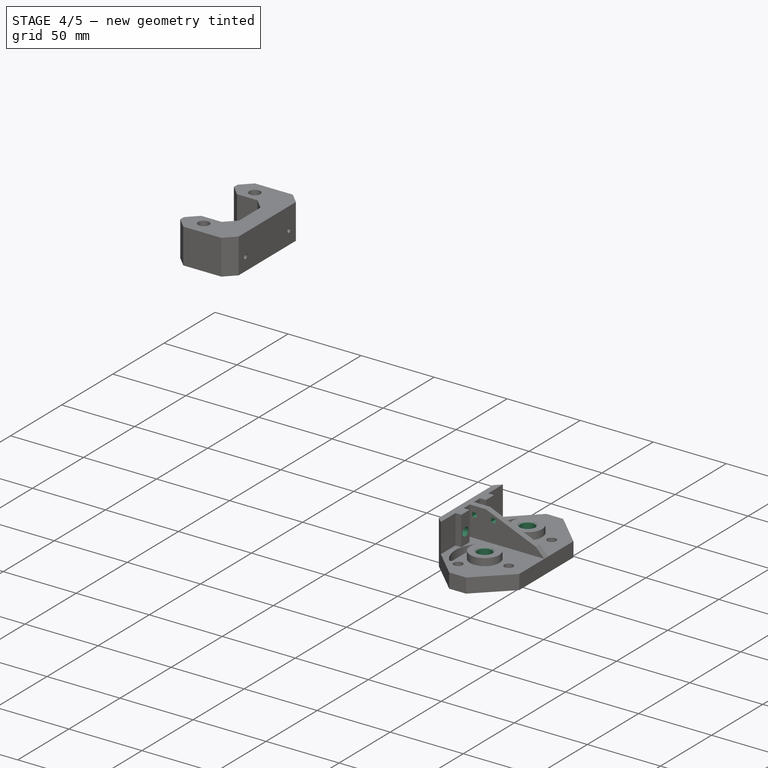
[diagram: stage 4 of 5 — iso view after this stage's code; geometry added in this stage tinted green]
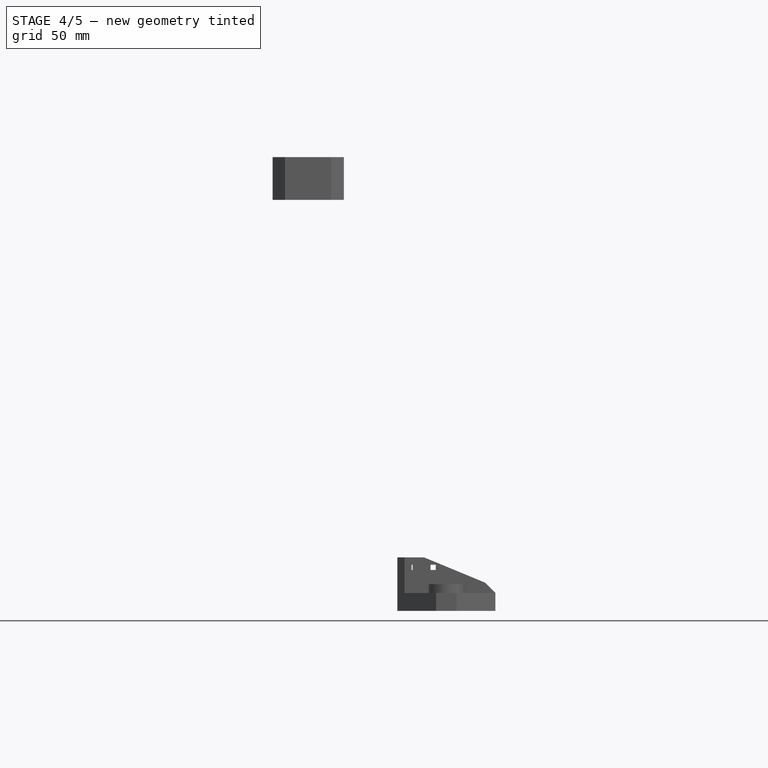
[diagram: stage 4 of 5 — front view after this stage's code; geometry added in this stage tinted green]
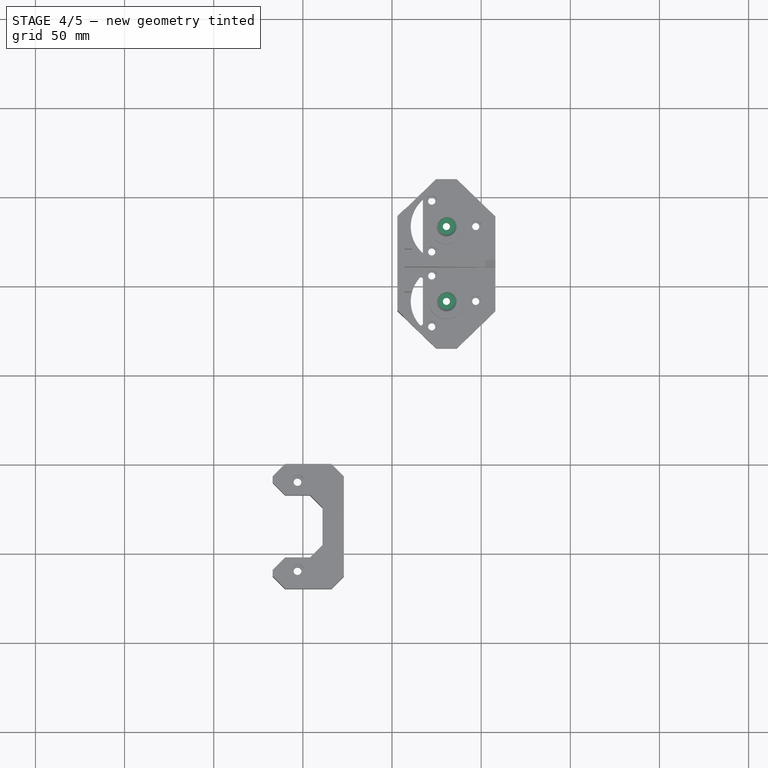
[diagram: stage 4 of 5 — top view after this stage's code; geometry added in this stage tinted green]
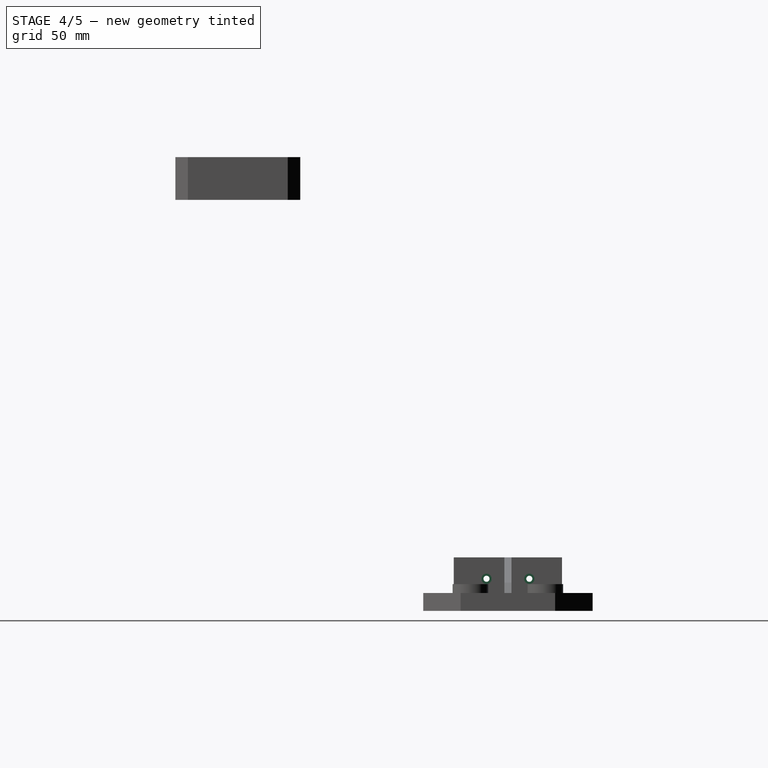
[diagram: stage 4 of 5 — right view after this stage's code; geometry added in this stage tinted green]
FEATURE [Sketcher::SketchObject] Sketch005
  Placement = pos=(-197,360.7,114.5) rot=(1,0,0;1.5708rad)
  Support = -> Pad001 [Face2]
  sketch-geometry (9):
    g0: LineSegment StartX=5.55428 StartY=25.9047 StartZ=0 EndX=8.55428 EndY=25.9047 EndZ=0
    g1: LineSegment StartX=8.55428 StartY=25.9047 StartZ=0 EndX=8.55428 EndY=22.9047 EndZ=0
    g2: LineSegment StartX=8.55428 StartY=22.9047 StartZ=0 EndX=5.55428 EndY=22.9047 EndZ=0
    g3: LineSegment StartX=5.55428 StartY=22.9047 StartZ=0 EndX=5.55428 EndY=25.9047 EndZ=0
    g4: LineSegment StartX=18.5543 StartY=25.9047 StartZ=0 EndX=21.5543 EndY=25.9047 EndZ=0
    g5: LineSegment StartX=21.5543 StartY=25.9047 StartZ=0 EndX=21.5543 EndY=22.9047 EndZ=0
    g6: LineSegment StartX=21.5543 StartY=22.9047 StartZ=0 EndX=18.5543 EndY=22.9047 EndZ=0
    g7: LineSegment StartX=18.5543 StartY=22.9047 StartZ=0 EndX=18.5543 EndY=25.9047 EndZ=0
    g8: LineSegment [constr] StartX=8.55428 StartY=22.9047 StartZ=0 EndX=18.5543 EndY=22.9047 EndZ=0
  constraints (24):
    c: Coincident(g0,g1)
    c: Coincident(g1,g2)
    c: Coincident(g2,g3)
    c: Coincident(g3,g0)
    c: Horizontal(g0)
    c: Horizontal(g2)
    c: Vertical(g1)
    c: Vertical(g3)
    c: Coincident(g4,g5)
    c: Coincident(g5,g6)
    c: Coincident(g6,g7)
    c: Coincident(g7,g4)
    c: Horizontal(g4)
    c: Horizontal(g6)
    c: Vertical(g5)
    c: Vertical(g7)
    c: Equal(g2,g6)
    c: Equal(g6,g7)
    c: Equal(g7,g1)
    c: Coincident(g8,g1)
    c: Coincident(g8,g6)
    c: Horizontal(g8)
    c: Distance(g8) = 10
    c: Distance(g5) = 3
FEATURE [PartDesign::Pocket] Pocket006
  Length = 5
  Placement = pos=(-197,315.2,114.5) rot=(0,0,1;0rad)
  Sketch = -> Sketch005
  Type = 0
FEATURE [Sketcher::SketchObject] Sketch006
  Placement = pos=(-189,315.2,114.5) rot=(0.57735,0.57735,0.57735;2.0944rad)
  Support = -> Pocket006 [Face8]
  sketch-geometry (5):
    g0: LineSegment [constr] StartX=31.5 StartY=18 StartZ=0 EndX=35.5 EndY=18 EndZ=0
    g1: LineSegment [constr] StartX=35.5 StartY=18 StartZ=0 EndX=59.5 EndY=18 EndZ=0
    g2: LineSegment [constr] StartX=59.5 StartY=18 StartZ=0 EndX=63.5 EndY=18 EndZ=0
    g3: Circle CenterX=35.5 CenterY=18 CenterZ=0 NormalX=0 NormalY=0 NormalZ=1 Radius=2.9
    g4: Circle CenterX=59.5 CenterY=18 CenterZ=0 NormalX=0 NormalY=0 NormalZ=1 Radius=2.9
  constraints (11):
    c: Horizontal(g0)
    c: Coincident(g0,g1)
    c: Horizontal(g1)
    c: Coincident(g1,g2)
    c: Horizontal(g2)
    c: Equal(g0,g2)
    c: Distance(g1) = 24
    c: Coincident(g3,g0)
    c: Coincident(g4,g1)
    c: Radius(g4) = 2.9
    c: Equal(g4,g3)
FEATURE [PartDesign::Pocket] Pocket007
  Length = 3.5
  Placement = pos=(-197,315.2,114.5) rot=(0,0,1;0rad)
  Sketch = -> Sketch006
  Type = 0
FEATURE [Sketcher::SketchObject] Sketch007
  Placement = pos=(-192.5,315.2,114.5) rot=(0.57735,0.57735,0.57735;2.0944rad)
  Support = -> Pocket007 [Face51]
  sketch-geometry (2):
    g0: Circle CenterX=35.5 CenterY=18 CenterZ=0 NormalX=0 NormalY=0 NormalZ=1 Radius=1.7
    g1: Circle CenterX=59.5 CenterY=18 CenterZ=0 NormalX=0 NormalY=0 NormalZ=1 Radius=1.7
  constraints (2):
    c: Radius(g0) = 1.7
    c: Equal(g0,g1)
FEATURE [PartDesign::Pocket] Pocket008
  Length = 5
  Placement = pos=(-197,315.2,114.5) rot=(0,0,1;0rad)
  Sketch = -> Sketch007
  Type = 0
FEATURE [App::DocumentObjectGroup] Group003  label="Cubre-ventiladores"
  Group = -> [Box002,Pad002,Pocket002,Pocket003,Pocket004]
FEATURE [Sketcher::SketchObject] Sketch009
  ExternalGeometry = -> [Pocket008]
  Placement = pos=(-197,315.2,129.5) rot=(0,0,1;0rad)
  Support = -> Pocket008 [Face64]
  sketch-geometry (2):
    g0: Circle CenterX=27.5 CenterY=26.5 CenterZ=0 NormalX=0 NormalY=0 NormalZ=1 Radius=4.8
    g1: Circle CenterX=27.5 CenterY=68.5 CenterZ=0 NormalX=0 NormalY=0 NormalZ=1 Radius=4.8
  constraints (4):
    c: Coincident(g0,g-4)
    c: Coincident(g1,g-3)
    c: Equal(g1,g0)
    c: Radius(g0) = 4.8
FEATURE [PartDesign::Pocket] Pocket009
  Length = 9.5
  Placement = pos=(-197,315.2,114.5) rot=(0,0,1;0rad)
  Sketch = -> Sketch009
  Type = 0
FEATURE [PartDesign::Chamfer] Chamfer002
  Base = -> Pocket009 [Edge176,Edge175]
  Placement = pos=(-197,315.2,114.5) rot=(0,0,1;0rad)
  Size = 1
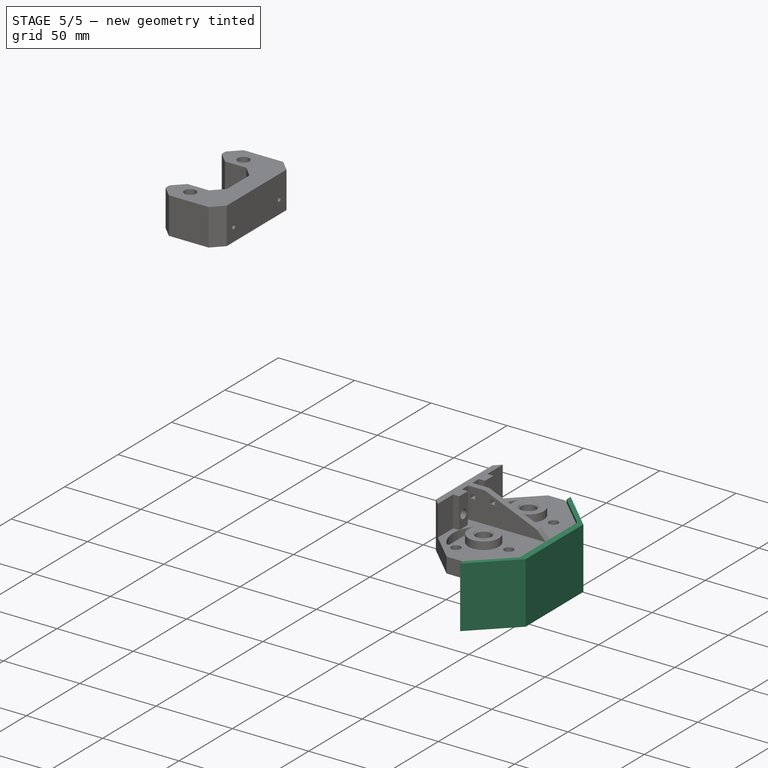
[diagram: stage 5 of 5 — iso view after this stage's code; geometry added in this stage tinted green]
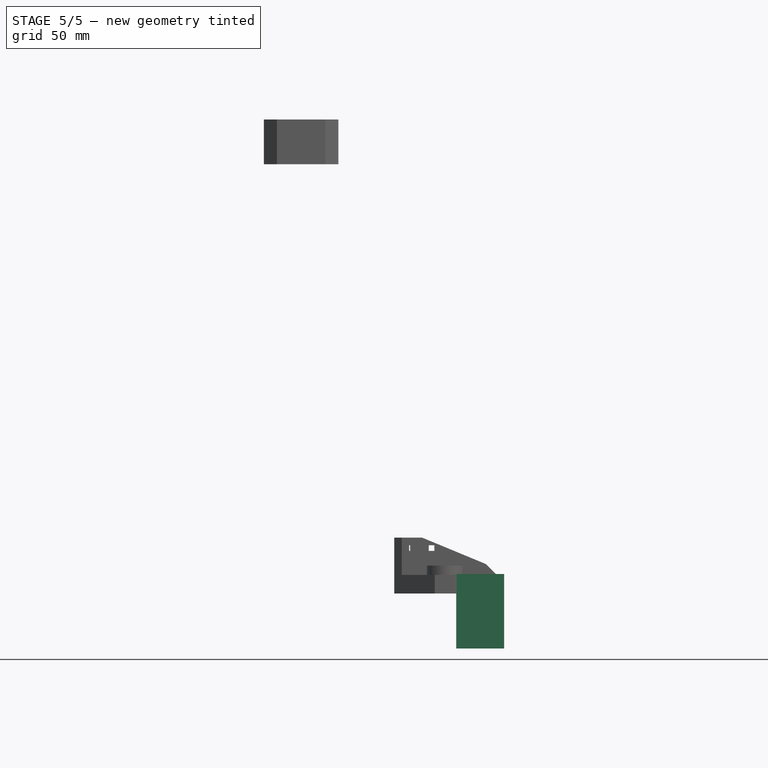
[diagram: stage 5 of 5 — front view after this stage's code; geometry added in this stage tinted green]
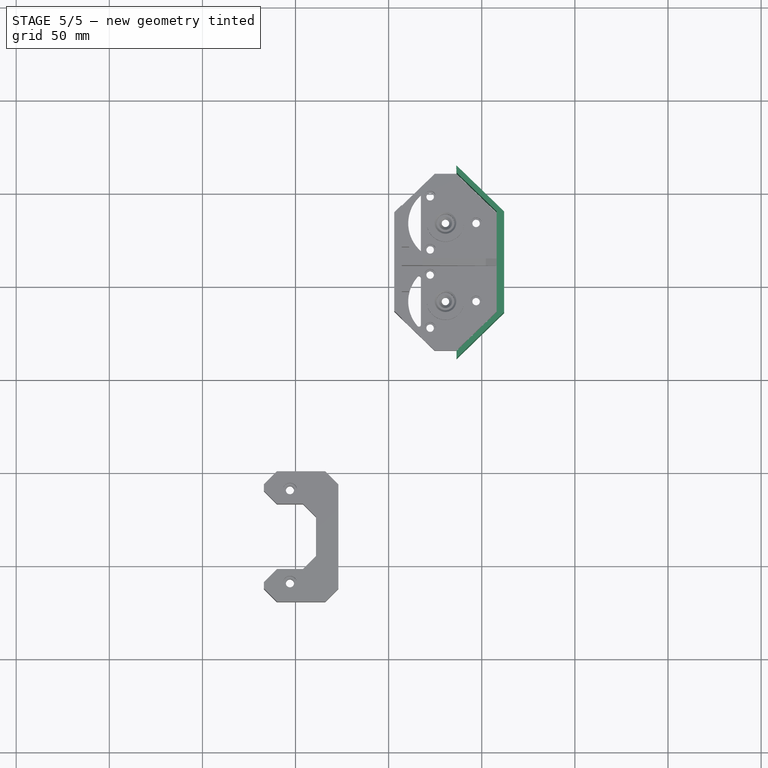
[diagram: stage 5 of 5 — top view after this stage's code; geometry added in this stage tinted green]
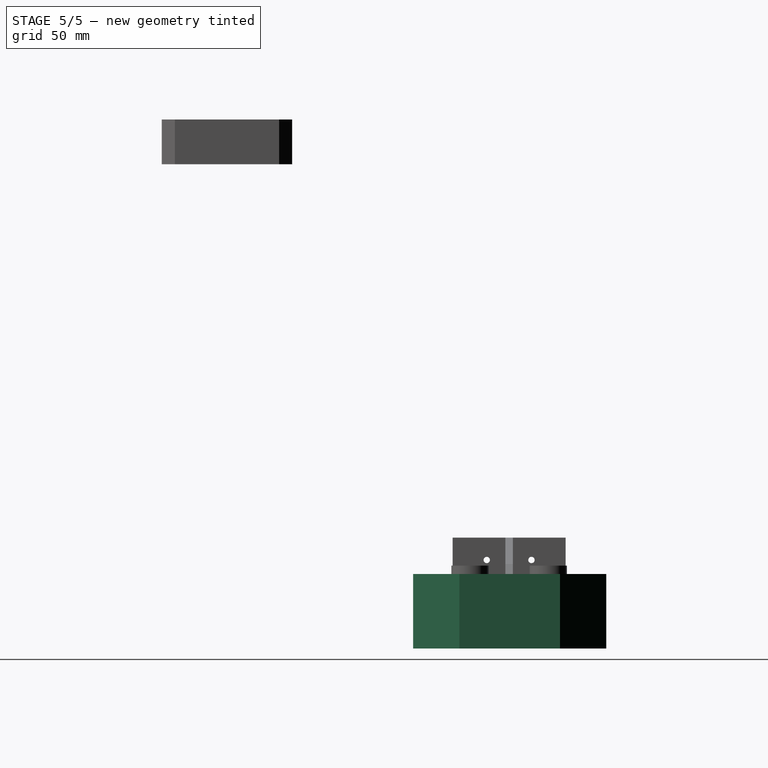
[diagram: stage 5 of 5 — right view after this stage's code; geometry added in this stage tinted green]
FEATURE [App::MeasureDistance] Distance002  label="Distance: 24.043"
  Distance = 24.0431
  P1 = (-214.352,377.772,132.54)
  P2 = (-214.352,353.729,132.465)
FEATURE [Part::Feature] Pocket002  label="Ventilador30mm"
  Placement = pos=(-142,378,89) rot=(0,0,-1;1.5708rad)
  shape: bbox 10 x 30 x 30 mm, 15 faces (baked)
FEATURE [Part::Box] Box002  label="Cube002"
  Height = 40
  Length = 4
  Placement = pos=(-142,336,85) rot=(0,0,1;0rad)
  Width = 54
FEATURE [App::DocumentObjectGroup] Group002  label="Cuerpo-principal"
  Group = -> [Box,Pocket,Pocket001,Fillet,Pad,Chamfer,Chamfer001,Pocket005,Pad001,Pocket006,Pocket007,Pocket008]
FEATURE [Sketcher::SketchObject] Sketch008
  ExternalGeometry = -> [Box002]
  Placement = pos=(-142,336,125) rot=(0,0,1;0rad)
  Support = -> Box002 [Face6]
  sketch-geometry (8):
    g0: LineSegment StartX=4 StartY=54 StartZ=0 EndX=-21.7198 EndY=78.8373 EndZ=0
    g1: LineSegment StartX=-21.7198 StartY=78.8373 StartZ=0 EndX=-21.5802 EndY=74.8398 EndZ=0
    g2: LineSegment StartX=-21.5802 StartY=74.8398 StartZ=0 EndX=0 EndY=54 EndZ=0
    g3: LineSegment StartX=0 StartY=54 StartZ=0 EndX=4 EndY=54 EndZ=0
    g4: LineSegment StartX=4 StartY=0 StartZ=0 EndX=-21.5802 EndY=-24.8398 EndZ=0
    g5: LineSegment StartX=-21.5802 StartY=-24.8398 StartZ=0 EndX=-21.5802 EndY=-20.8398 EndZ=0
    g6: LineSegment StartX=-21.5802 StartY=-20.8398 StartZ=0 EndX=0 EndY=0 EndZ=0
    g7: LineSegment StartX=0 StartY=0 StartZ=0 EndX=4 EndY=0 EndZ=0
  constraints (20):
    c: Coincident(g0,g1)
    c: Coincident(g1,g2)
    c: Coincident(g2,g-4)
    c: Coincident(g2,g3)
    c: Coincident(g3,g-3)
    c: Coincident(g0,g3)
    c: Parallel(g2,g0)
    c: Angle(g2,g-4) = 2.33874
    c: Equal(g3,g1)
    c: Distance(g2) = 30
    c: Coincident(g-3,g4)
    c: Coincident(g4,g5)
    c: Vertical(g5)
    c: Coincident(g5,g6)
    c: Coincident(g6,g-1)
    c: Coincident(g6,g7)
    c: Coincident(g7,g4)
    c: Angle(g-4,g6) = 2.33874
    c: Equal(g5,g7)
    c: Equal(g6,g2)
FEATURE [PartDesign::Pad] Pad002
  Length = 40
  Length2 = 10
  Placement = pos=(-142,336,85) rot=(0,0,1;0rad)
  Reversed = true
  Sketch = -> Sketch008
  Type = 0
FEATURE [PartDesign::Chamfer] Chamfer003
  Base = -> Chamfer002 [Edge26,Edge162]
  Placement = pos=(-197,315.2,114.5) rot=(0,0,1;0rad)
  Size = 1.5
FEATURE [Sketcher::SketchObject] Sketch010
  ExternalGeometry = -> [Chamfer003]
  Placement = pos=(-142,315.2,114.5) rot=(0.57735,0.57735,0.57735;2.0944rad)
  Support = -> Chamfer003 [Face19]
  sketch-geometry (7):
    g0: LineSegment [constr] StartX=21 StartY=10 StartZ=0 EndX=21 EndY=5 EndZ=0
    g1: LineSegment [constr] StartX=21 StartY=5 StartZ=0 EndX=21 EndY=0 EndZ=0
    g2: LineSegment [constr] StartX=21 StartY=5 StartZ=0 EndX=30 EndY=5 EndZ=0
    g3: LineSegment [constr] StartX=30 StartY=5 StartZ=0 EndX=65 EndY=5 EndZ=0
    g4: LineSegment [constr] StartX=65 StartY=5 StartZ=0 EndX=74 EndY=5 EndZ=0
    g5: Circle CenterX=30 CenterY=5 CenterZ=0 NormalX=0 NormalY=0 NormalZ=1 Radius=1.5
    g6: Circle CenterX=65 CenterY=5 CenterZ=0 NormalX=0 NormalY=0 NormalZ=1 Radius=1.5
  constraints (19):
    c: Vertical(g0)
    c: Coincident(g0,g1)
    c: Vertical(g1)
    c: Coincident(g0,g2)
    c: Horizontal(g2)
    c: Coincident(g2,g3)
    c: Horizontal(g3)
    c: Coincident(g3,g4)
    c: PointOnObject(g4,g-4)
    c: Horizontal(g4)
    c: Equal(g2,g4)
    c: Equal(g0,g1)
    c: Coincident(g0,g-3)
    c: Coincident(g1,g-3)
    c: Distance(g3) = 35
    c: Coincident(g5,g2)
    c: Coincident(g6,g3)
    c: Equal(g6,g5)
    c: Radius(g5) = 1.5
FEATURE [PartDesign::Pocket] Pocket010
  Length = 8
  Placement = pos=(-197,315.2,114.5) rot=(0,0,1;0rad)
  Sketch = -> Sketch010
  Type = 0
FEATURE [Sketcher::SketchObject] Sketch011
  ExternalGeometry = -> [Pocket010]
  Placement = pos=(-197,315.2,118.5) rot=(0,0,1;0rad)
  Support = -> Pocket010 [Face46]
  sketch-geometry (6):
    g0: Circle CenterX=19.2728 CenterY=82.75 CenterZ=0 NormalX=0 NormalY=0 NormalZ=1 Radius=3
    g1: Circle CenterX=43.9545 CenterY=68.5 CenterZ=0 NormalX=0 NormalY=0 NormalZ=1 Radius=3
    g2: Circle CenterX=19.2728 CenterY=54.25 CenterZ=0 NormalX=0 NormalY=0 NormalZ=1 Radius=3
    g3: Circle CenterX=19.2728 CenterY=40.75 CenterZ=0 NormalX=0 NormalY=0 NormalZ=1 Radius=3
    g4: Circle CenterX=43.9545 CenterY=26.5 CenterZ=0 NormalX=0 NormalY=0 NormalZ=1 Radius=3
    g5: Circle CenterX=19.2728 CenterY=12.25 CenterZ=0 NormalX=0 NormalY=0 NormalZ=1 Radius=3
  constraints (12):
    c: Coincident(g0,g-3)
    c: Coincident(g1,g-4)
    c: Coincident(g2,g-5)
    c: Coincident(g3,g-6)
    c: Coincident(g4,g-7)
    c: Coincident(g5,g-8)
    c: Equal(g0,g1)
    c: Equal(g1,g2)
    c: Equal(g2,g3)
    c: Equal(g3,g4)
    c: Equal(g4,g5)
    c: Equal(g5,g-3)
FEATURE [PartDesign::Pocket] Pocket011
  Length = 1
  Placement = pos=(-197,315.2,114.5) rot=(0,0,1;0rad)
  Sketch = -> Sketch011
  Type = 0
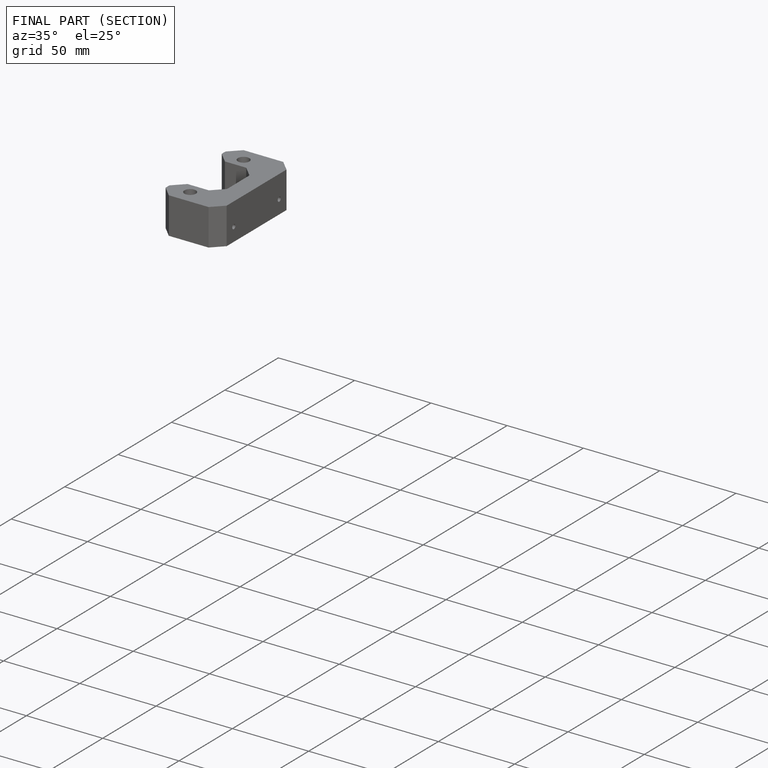
[diagram: finished part — half-section view (interior)]
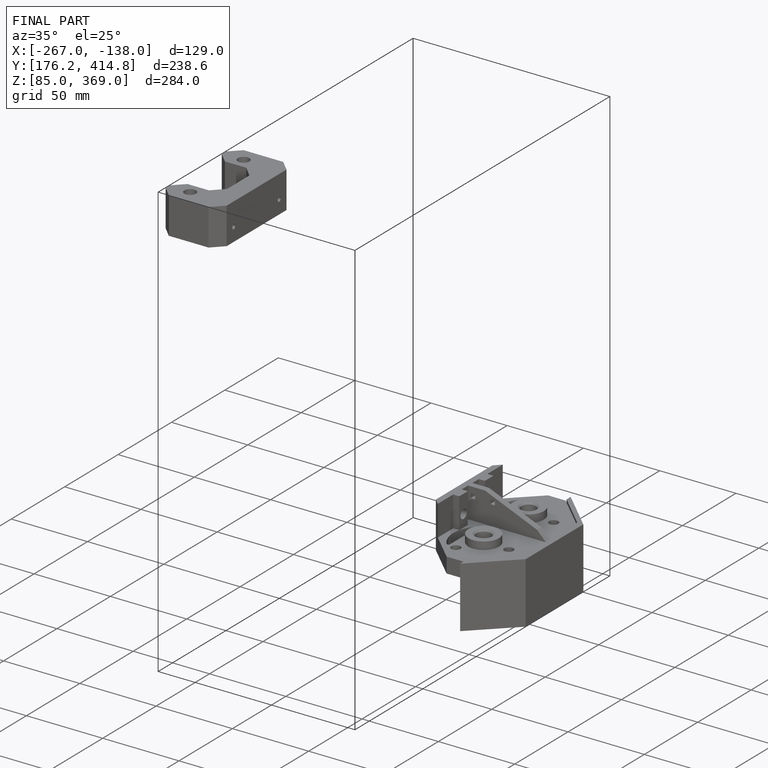
[diagram: finished part — iso view with bounding-box wireframe]
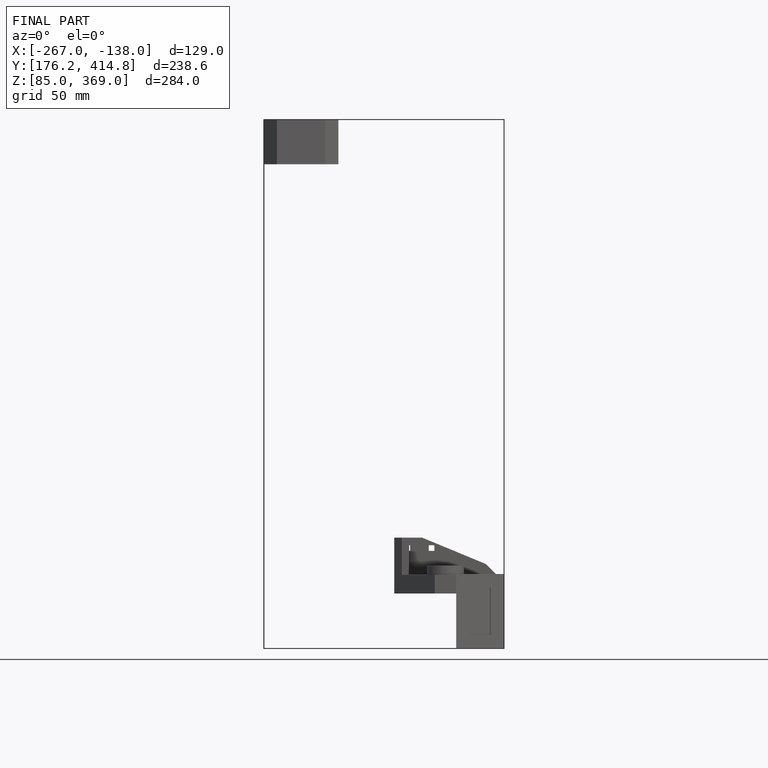
[diagram: finished part — front view with bounding-box wireframe]
